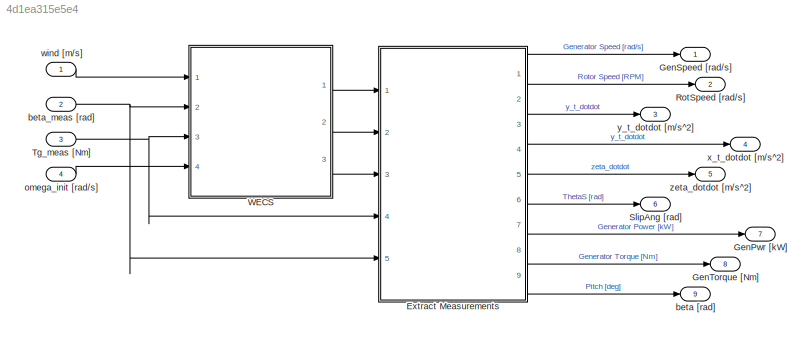
MODEL slx_4d1ea315e5e4
KIND model
CONFIG AbsTol = auto
CONFIG EnableMultiTasking = off
CONFIG FixedStep = DT
CONFIG MaxStep = auto
CONFIG MinStep = auto
CONFIG RelTol = 1e-3
CONFIG SampleTimeConstraint = Unconstrained
CONFIG Solver = FixedStepAuto
CONFIG SolverName = FixedStepAuto
CONFIG StartTime = 0.0
CONFIG StopTime = 10.0
BLOCK [Outport]  RotSpeed [rad//s]
  IconDisplay = Port number
  Port = 2
  VectorParamsAs1DForOutWhenUnconnected = off
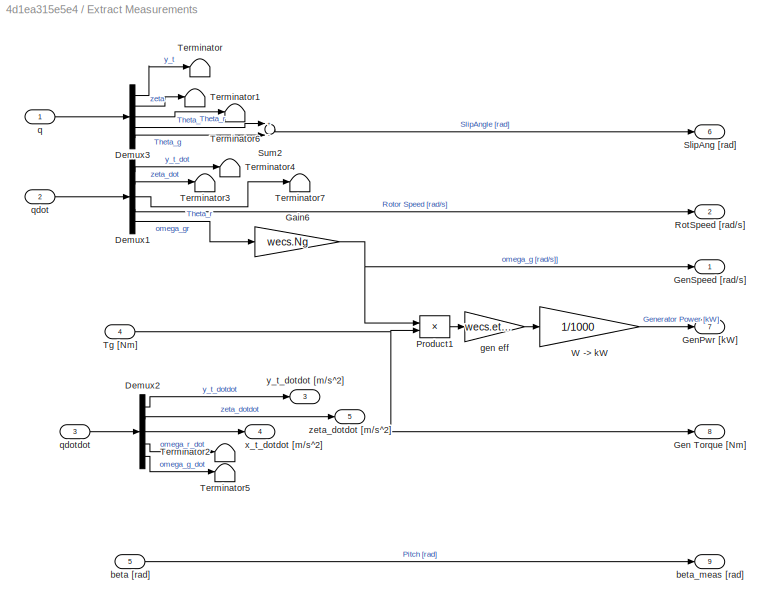
BLOCK [SubSystem] Extract Measurements
  Ports = [5, 9]
  RequestExecContextInheritance = off
BLOCK [Demux] Extract Measurements/Demux1
  DisplayOption = bar
  Outputs = 5
  Ports = [1, 5]
BLOCK [Demux] Extract Measurements/Demux2
  DisplayOption = bar
  Outputs = 5
  Ports = [1, 5]
BLOCK [Demux] Extract Measurements/Demux3
  DisplayOption = bar
  Outputs = 5
  Ports = [1, 5]
BLOCK [Gain] Extract Measurements/Gain6
  Gain = wecs.Ng
  OutDataTypeStr = Inherit: Inherit via internal rule
  ParamDataTypeStr = Inherit: Inherit via internal rule
  SaturateOnIntegerOverflow = off
BLOCK [Outport] Extract Measurements/Gen Torque [Nm]  
  IconDisplay = Port number
  Port = 8
  VectorParamsAs1DForOutWhenUnconnected = off
BLOCK [Outport] Extract Measurements/GenPwr [kW]
  IconDisplay = Port number
  Port = 7
  VectorParamsAs1DForOutWhenUnconnected = off
BLOCK [Outport] Extract Measurements/GenSpeed  [rad//s]
  IconDisplay = Port number
  VectorParamsAs1DForOutWhenUnconnected = off
BLOCK [Product] Extract Measurements/Product1
  InputSameDT = off
  OutDataTypeStr = Inherit: Inherit via internal rule
  Ports = [2, 1]
  SaturateOnIntegerOverflow = off
BLOCK [Outport] Extract Measurements/RotSpeed  [rad//s]
  IconDisplay = Port number
  Port = 2
  VectorParamsAs1DForOutWhenUnconnected = off
BLOCK [Outport] Extract Measurements/SlipAng [rad]
  IconDisplay = Port number
  Port = 6
  VectorParamsAs1DForOutWhenUnconnected = off
BLOCK [Sum] Extract Measurements/Sum2
  InputSameDT = off
  Inputs = +-
  OutDataTypeStr = Inherit: Inherit via internal rule
  Ports = [2, 1]
  SaturateOnIntegerOverflow = off
BLOCK [Terminator] Extract Measurements/Terminator
BLOCK [Terminator] Extract Measurements/Terminator1
BLOCK [Terminator] Extract Measurements/Terminator2
BLOCK [Terminator] Extract Measurements/Terminator3
BLOCK [Terminator] Extract Measurements/Terminator4
BLOCK [Terminator] Extract Measurements/Terminator5
BLOCK [Terminator] Extract Measurements/Terminator6
BLOCK [Terminator] Extract Measurements/Terminator7
BLOCK [Inport] Extract Measurements/Tg [Nm]
  IconDisplay = Port number
  Port = 4
BLOCK [Gain] Extract Measurements/W -> kW
  Gain = 1/1000
  OutDataTypeStr = Inherit: Inherit via internal rule
  ParamDataTypeStr = Inherit: Inherit via internal rule
  SaturateOnIntegerOverflow = off
BLOCK [Inport] Extract Measurements/beta [rad]
  IconDisplay = Port number
  Port = 5
BLOCK [Outport] Extract Measurements/beta_meas [rad]
  IconDisplay = Port number
  Port = 9
  VectorParamsAs1DForOutWhenUnconnected = off
BLOCK [Gain] Extract Measurements/gen eff
  Gain = wecs.etag
  OutDataTypeStr = Inherit: Inherit via internal rule
  ParamDataTypeStr = Inherit: Inherit via internal rule
  SaturateOnIntegerOverflow = off
BLOCK [Inport] Extract Measurements/q
  IconDisplay = Port number
BLOCK [Inport] Extract Measurements/qdot
  IconDisplay = Port number
  Port = 2
BLOCK [Inport] Extract Measurements/qdotdot
  IconDisplay = Port number
  Port = 3
BLOCK [Outport] Extract Measurements/x_t_dotdot [m//s^2]
  IconDisplay = Port number
  Port = 4
  VectorParamsAs1DForOutWhenUnconnected = off
BLOCK [Outport] Extract Measurements/y_t_dotdot [m//s^2]
  IconDisplay = Port number
  Port = 3
  VectorParamsAs1DForOutWhenUnconnected = off
BLOCK [Outport] Extract Measurements/zeta_dotdot [m//s^2]
  IconDisplay = Port number
  Port = 5
  VectorParamsAs1DForOutWhenUnconnected = off
BLOCK [Outport] GenPwr [kW]
  IconDisplay = Port number
  Port = 7
  VectorParamsAs1DForOutWhenUnconnected = off
BLOCK [Outport] GenSpeed [rad//s] 
  IconDisplay = Port number
  VectorParamsAs1DForOutWhenUnconnected = off
BLOCK [Outport] GenTorque  [Nm]  
  IconDisplay = Port number
  Port = 8
  VectorParamsAs1DForOutWhenUnconnected = off
BLOCK [Outport] SlipAng [rad]
  IconDisplay = Port number
  Port = 6
  VectorParamsAs1DForOutWhenUnconnected = off
BLOCK [Inport] Tg_meas [Nm]
  IconDisplay = Port number
  Port = 3
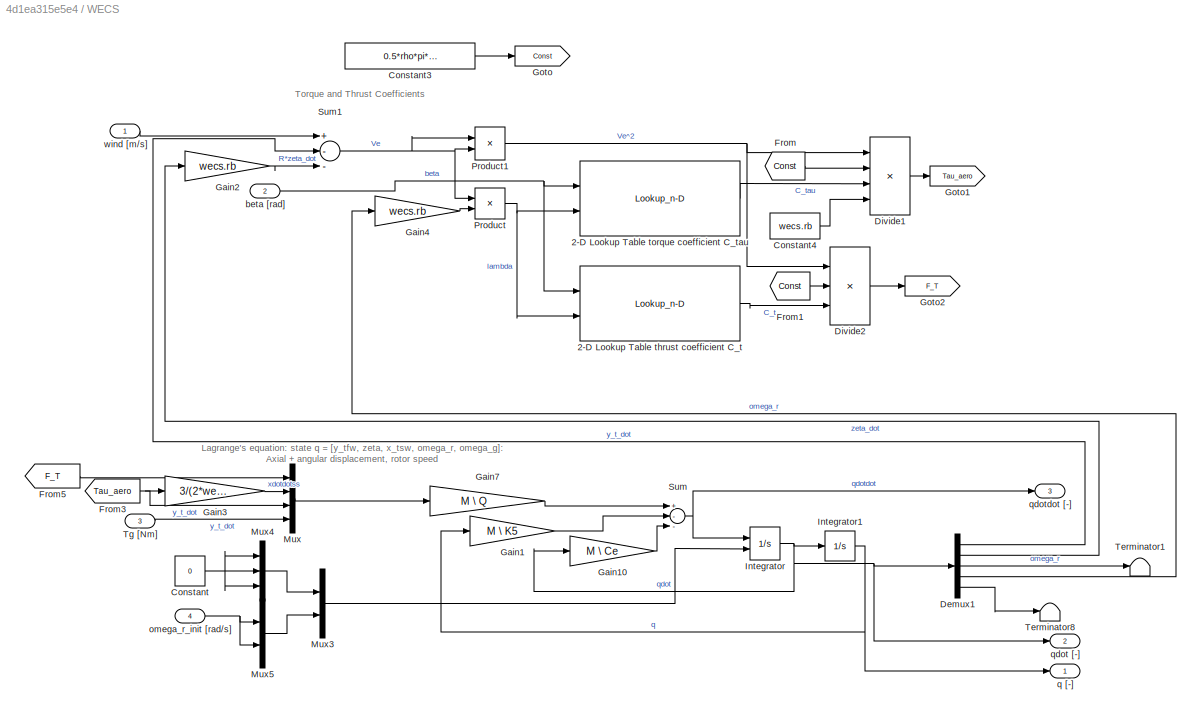
BLOCK [SubSystem] WECS
  Ports = [4, 3]
  RequestExecContextInheritance = off
BLOCK [Lookup_n-D] WECS/2-D Lookup Table thrust coefficient C_t
  BreakpointsForDimension1 = beta
  BreakpointsForDimension2 = lambda
  InternalRulePriority = Speed
  InterpMethod = Cubic spline
  Ports = [2, 1]
  RndMeth = Simplest
  Table = Ct
BLOCK [Lookup_n-D] WECS/2-D Lookup Table torque coefficient C_tau
  BreakpointsForDimension1 = beta
  BreakpointsForDimension2 = lambda
  InternalRulePriority = Speed
  InterpMethod = Cubic spline
  Ports = [2, 1]
  RndMeth = Simplest
  Table = Cq
BLOCK [Constant] WECS/Constant
  Value = 0
BLOCK [Constant] WECS/Constant3
  Value = 0.5*rho*pi*wecs.rb^2
BLOCK [Constant] WECS/Constant4
  Value = wecs.rb
BLOCK [Demux] WECS/Demux1
  DisplayOption = bar
  Outputs = 5
  Ports = [1, 5]
BLOCK [Product] WECS/Divide1
  InputSameDT = off
  Inputs = ****
  OutDataTypeStr = Inherit: Inherit via internal rule
  Ports = [4, 1]
  RndMeth = Floor
  SaturateOnIntegerOverflow = off
BLOCK [Product] WECS/Divide2
  InputSameDT = off
  Inputs = ***
  OutDataTypeStr = Inherit: Inherit via internal rule
  Ports = [3, 1]
  RndMeth = Floor
  SaturateOnIntegerOverflow = off
BLOCK [From] WECS/From
  GotoTag = Const
BLOCK [From] WECS/From1
  GotoTag = Const
BLOCK [From] WECS/From3
  GotoTag = Tau_aero
BLOCK [From] WECS/From5
  GotoTag = F_T
BLOCK [Gain] WECS/Gain1
  Gain = M \ K5
  Multiplication = Matrix(K*u)
  OutDataTypeStr = Inherit: Inherit via internal rule
  ParamDataTypeStr = Inherit: Inherit via internal rule
  SaturateOnIntegerOverflow = off
BLOCK [Gain] WECS/Gain10
  Gain = M \ Ce
  Multiplication = Matrix(K*u)
  OutDataTypeStr = Inherit: Inherit via internal rule
  ParamDataTypeStr = Inherit: Inherit via internal rule
  SaturateOnIntegerOverflow = off
BLOCK [Gain] WECS/Gain2
  Gain = wecs.rb
  OutDataTypeStr = Inherit: Inherit via internal rule
  ParamDataTypeStr = Inherit: Inherit via internal rule
  SaturateOnIntegerOverflow = off
BLOCK [Gain] WECS/Gain3
  Gain = 3/(2*wecs.H)
  OutDataTypeStr = Inherit: Inherit via internal rule
  ParamDataTypeStr = Inherit: Inherit via internal rule
  SaturateOnIntegerOverflow = off
BLOCK [Gain] WECS/Gain4
  Gain = wecs.rb
  OutDataTypeStr = Inherit: Inherit via internal rule
  ParamDataTypeStr = Inherit: Inherit via internal rule
  SaturateOnIntegerOverflow = off
BLOCK [Gain] WECS/Gain7
  Gain = M \ Q
  Multiplication = Matrix(K*u)
  OutDataTypeStr = Inherit: Inherit via internal rule
  ParamDataTypeStr = Inherit: Inherit via internal rule
  SaturateOnIntegerOverflow = off
BLOCK [Goto] WECS/Goto
  GotoTag = Const
BLOCK [Goto] WECS/Goto1
  GotoTag = Tau_aero
BLOCK [Goto] WECS/Goto2
  GotoTag = F_T
BLOCK [Integrator] WECS/Integrator
  InitialCondition = [0,0,0.75, 0.75]
  InitialConditionSource = external
  Ports = [2, 1]
BLOCK [Integrator] WECS/Integrator1
  InitialCondition = [0,0,0,0,0]
  Ports = [1, 1]
BLOCK [Mux] WECS/Mux
  DisplayOption = bar
  Ports = [4, 1]
BLOCK [Mux] WECS/Mux3
  DisplayOption = bar
  Inputs = 2
  Ports = [2, 1]
BLOCK [Mux] WECS/Mux4
  DisplayOption = bar
  Inputs = 3
  Ports = [3, 1]
BLOCK [Mux] WECS/Mux5
  DisplayOption = bar
  Inputs = 2
  Ports = [2, 1]
BLOCK [Product] WECS/Product
  InputSameDT = off
  Inputs = /*
  OutDataTypeStr = Inherit: Inherit via internal rule
  Ports = [2, 1]
  RndMeth = Floor
  SaturateOnIntegerOverflow = off
BLOCK [Product] WECS/Product1
  InputSameDT = off
  Inputs = **
  OutDataTypeStr = Inherit: Inherit via internal rule
  Ports = [2, 1]
  RndMeth = Floor
  SaturateOnIntegerOverflow = off
BLOCK [Sum] WECS/Sum
  InputSameDT = off
  Inputs = +--
  OutDataTypeStr = Inherit: Inherit via internal rule
  Ports = [3, 1]
  SaturateOnIntegerOverflow = off
BLOCK [Sum] WECS/Sum1
  InputSameDT = off
  Inputs = +--
  OutDataTypeStr = Inherit: Inherit via internal rule
  Ports = [3, 1]
  SaturateOnIntegerOverflow = off
BLOCK [Terminator] WECS/Terminator1
BLOCK [Terminator] WECS/Terminator8
BLOCK [Inport] WECS/Tg [Nm]
  IconDisplay = Port number
  Port = 3
BLOCK [Inport] WECS/beta  [rad]
  IconDisplay = Port number
  Port = 2
BLOCK [Inport] WECS/omega_r_init [rad//s]
  IconDisplay = Port number
  Port = 4
BLOCK [Outport] WECS/q [-]
  IconDisplay = Port number
  VectorParamsAs1DForOutWhenUnconnected = off
BLOCK [Outport] WECS/qdot [-]
  IconDisplay = Port number
  Port = 2
  VectorParamsAs1DForOutWhenUnconnected = off
BLOCK [Outport] WECS/qdotdot [-]
  IconDisplay = Port number
  Port = 3
  VectorParamsAs1DForOutWhenUnconnected = off
BLOCK [Inport] WECS/wind [m//s]
  IconDisplay = Port number
BLOCK [Outport] beta [rad]
  IconDisplay = Port number
  Port = 9
  VectorParamsAs1DForOutWhenUnconnected = off
BLOCK [Inport] beta_meas [rad]
  IconDisplay = Port number
  Port = 2
BLOCK [Inport] omega_init [rad//s]
  IconDisplay = Port number
  Port = 4
BLOCK [Inport] wind [m//s]
  IconDisplay = Port number
BLOCK [Outport] x_t_dotdot [m//s^2]
  IconDisplay = Port number
  Port = 4
  VectorParamsAs1DForOutWhenUnconnected = off
BLOCK [Outport] y_t_dotdot [m//s^2]
  IconDisplay = Port number
  Port = 3
  VectorParamsAs1DForOutWhenUnconnected = off
BLOCK [Outport] zeta_dotdot [m//s^2]
  IconDisplay = Port number
  Port = 5
  VectorParamsAs1DForOutWhenUnconnected = off
ANNOTATION WECS: Lagrange's equation: state q = [y_tfw, zeta, x_tsw, omega_r, omega_g]: Axial + angular displacement, rotor speed
ANNOTATION WECS: Torque and Thrust Coefficients
LINE Extract Measurements/Demux1:1 -> Extract Measurements/Terminator4:1
LINE Extract Measurements/Demux1:2 -> Extract Measurements/Terminator3:1
LINE Extract Measurements/Demux1:3 -> Extract Measurements/Terminator7:1
LINE Extract Measurements/Demux1:4 -> Extract Measurements/RotSpeed  [rad//s]:1
LINE Extract Measurements/Demux1:5 -> Extract Measurements/Gain6:1
LINE Extract Measurements/Demux2:1 -> Extract Measurements/y_t_dotdot [m//s^2]:1
LINE Extract Measurements/Demux2:2 -> Extract Measurements/zeta_dotdot [m//s^2]:1
LINE Extract Measurements/Demux2:3 -> Extract Measurements/x_t_dotdot [m//s^2]:1
LINE Extract Measurements/Demux2:4 -> Extract Measurements/Terminator2:1
LINE Extract Measurements/Demux2:5 -> Extract Measurements/Terminator5:1
LINE Extract Measurements/Demux3:1 -> Extract Measurements/Terminator:1
LINE Extract Measurements/Demux3:2 -> Extract Measurements/Terminator1:1
LINE Extract Measurements/Demux3:3 -> Extract Measurements/Terminator6:1
LINE Extract Measurements/Demux3:4 -> Extract Measurements/Sum2:1
LINE Extract Measurements/Demux3:5 -> Extract Measurements/Sum2:2
NET Extract Measurements/Gain6:1 -> Extract Measurements/GenSpeed  [rad//s]:1, Extract Measurements/Product1:1
LINE Extract Measurements/Product1:1 -> Extract Measurements/gen eff:1
LINE Extract Measurements/Sum2:1 -> Extract Measurements/SlipAng [rad]:1
NET Extract Measurements/Tg [Nm]:1 -> Extract Measurements/Gen Torque [Nm]  :1, Extract Measurements/Product1:2
LINE Extract Measurements/W -> kW:1 -> Extract Measurements/GenPwr [kW]:1
LINE Extract Measurements/beta [rad]:1 -> Extract Measurements/beta_meas [rad]:1
LINE Extract Measurements/gen eff:1 -> Extract Measurements/W -> kW:1
LINE Extract Measurements/q:1 -> Extract Measurements/Demux3:1
LINE Extract Measurements/qdot:1 -> Extract Measurements/Demux1:1
LINE Extract Measurements/qdotdot:1 -> Extract Measurements/Demux2:1
LINE Extract Measurements:1 -> GenSpeed [rad//s] :1
LINE Extract Measurements:2 ->  RotSpeed [rad//s]:1
LINE Extract Measurements:3 -> y_t_dotdot [m//s^2]:1
LINE Extract Measurements:4 -> x_t_dotdot [m//s^2]:1
LINE Extract Measurements:5 -> zeta_dotdot [m//s^2]:1
LINE Extract Measurements:6 -> SlipAng [rad]:1
LINE Extract Measurements:7 -> GenPwr [kW]:1
LINE Extract Measurements:8 -> GenTorque  [Nm]  :1
LINE Extract Measurements:9 -> beta [rad]:1
NET Tg_meas [Nm]:1 -> Extract Measurements:4, WECS:3
LINE WECS/2-D Lookup Table thrust coefficient C_t:1 -> WECS/Divide2:3
LINE WECS/2-D Lookup Table torque coefficient C_tau:1 -> WECS/Divide1:3
LINE WECS/Constant3:1 -> WECS/Goto:1
LINE WECS/Constant4:1 -> WECS/Divide1:4
NET WECS/Constant:1 -> WECS/Mux4:1, WECS/Mux4:2, WECS/Mux4:3
LINE WECS/Demux1:1 -> WECS/Sum1:2
LINE WECS/Demux1:2 -> WECS/Gain2:1
LINE WECS/Demux1:3 -> WECS/Terminator1:1
LINE WECS/Demux1:4 -> WECS/Gain4:1
LINE WECS/Demux1:5 -> WECS/Terminator8:1
LINE WECS/Divide1:1 -> WECS/Goto1:1
LINE WECS/Divide2:1 -> WECS/Goto2:1
LINE WECS/From1:1 -> WECS/Divide2:2
NET WECS/From3:1 -> WECS/Gain3:1, WECS/Mux:3
LINE WECS/From5:1 -> WECS/Mux:1
LINE WECS/From:1 -> WECS/Divide1:2
LINE WECS/Gain10:1 -> WECS/Sum:3
LINE WECS/Gain1:1 -> WECS/Sum:2
LINE WECS/Gain2:1 -> WECS/Sum1:3
LINE WECS/Gain3:1 -> WECS/Mux:2
LINE WECS/Gain4:1 -> WECS/Product:2
LINE WECS/Gain7:1 -> WECS/Sum:1
NET WECS/Integrator1:1 -> WECS/Gain1:1, WECS/q [-]:1
NET WECS/Integrator:1 -> WECS/Demux1:1, WECS/Gain10:1, WECS/Integrator1:1, WECS/qdot [-]:1
LINE WECS/Mux3:1 -> WECS/Integrator:2
LINE WECS/Mux4:1 -> WECS/Mux3:1
LINE WECS/Mux5:1 -> WECS/Mux3:2
LINE WECS/Mux:1 -> WECS/Gain7:1
NET WECS/Product1:1 -> WECS/Divide1:1, WECS/Divide2:1
NET WECS/Product:1 -> WECS/2-D Lookup Table thrust coefficient C_t:2, WECS/2-D Lookup Table torque coefficient C_tau:2
NET WECS/Sum1:1 -> WECS/Product1:1, WECS/Product1:2, WECS/Product:1
NET WECS/Sum:1 -> WECS/Integrator:1, WECS/qdotdot [-]:1
LINE WECS/Tg [Nm]:1 -> WECS/Mux:4
NET WECS/beta  [rad]:1 -> WECS/2-D Lookup Table thrust coefficient C_t:1, WECS/2-D Lookup Table torque coefficient C_tau:1
NET WECS/omega_r_init [rad//s]:1 -> WECS/Mux5:1, WECS/Mux5:2
LINE WECS/wind [m//s]:1 -> WECS/Sum1:1
LINE WECS:1 -> Extract Measurements:1
LINE WECS:2 -> Extract Measurements:2
LINE WECS:3 -> Extract Measurements:3
NET beta_meas [rad]:1 -> Extract Measurements:5, WECS:2
LINE omega_init [rad//s]:1 -> WECS:4
LINE wind [m//s]:1 -> WECS:1
note: NET lines group one-source signal fan-out (src -> all destinations, sorted); 1:1 wires keep LINE
